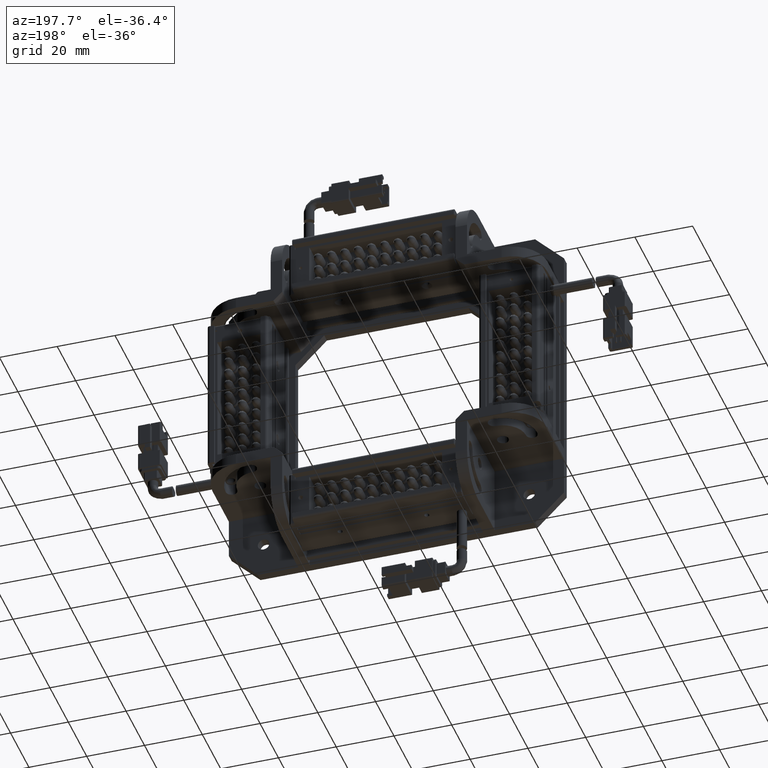
[diagram: clean part render]
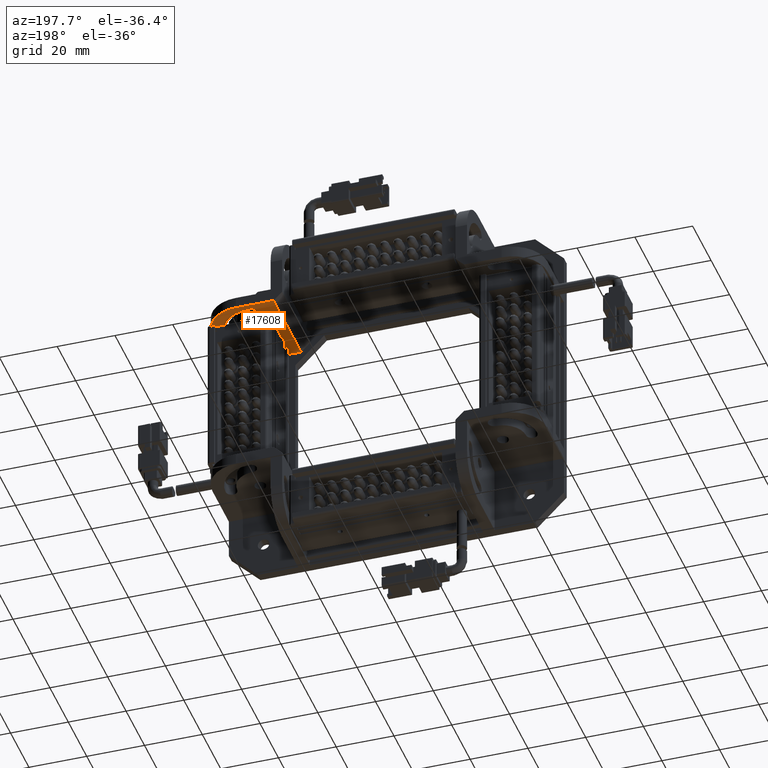
[diagram: same view with one face highlighted and labeled with its STEP entity id]
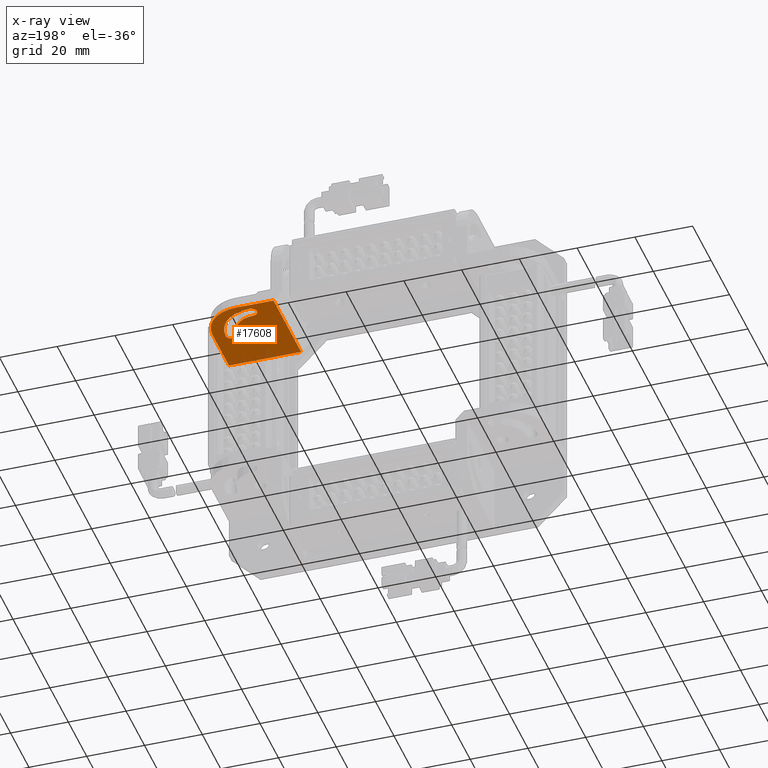
[diagram: x-ray of the same camera — body ghosted, the highlighted face saturated]
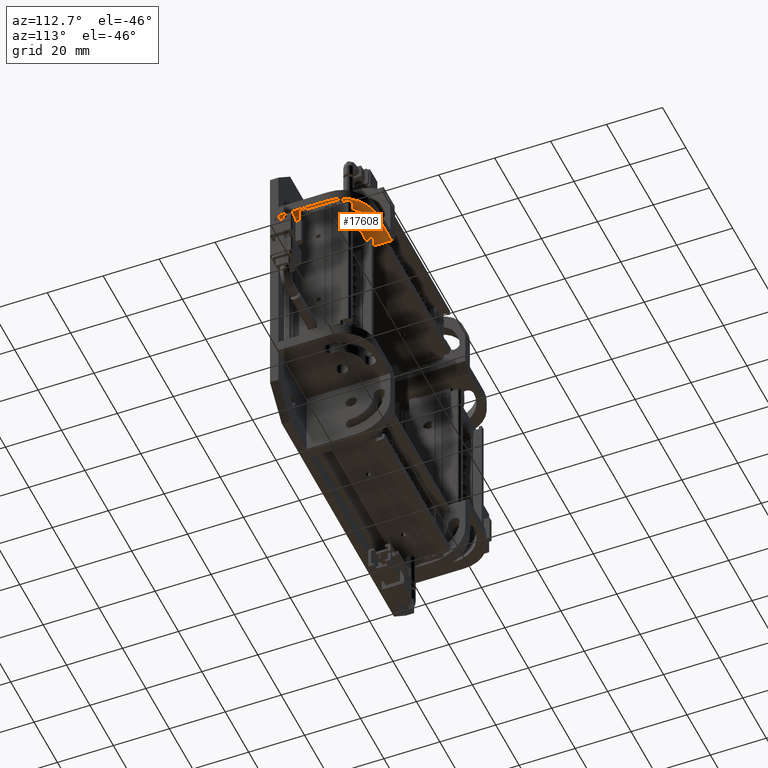
[diagram: same view with one face highlighted and labeled with its STEP entity id]
A machine part, auxiliary view. The second image highlights one B-rep face of the part: STEP entity #17608.
The next image is the same camera in x-ray: the body ghosted, the highlighted face saturated — about 6% of this face is hidden behind the body in this view.
A second angle (auxiliary view) of the same face is appended — the face is thin or edge-on in the first view.
In plain terms, the highlighted planar face has unit normal (0, 0, 1).
Its self-contained STEP definition (entity closure, byte-faithful):
#27 = EDGE_CURVE ( 'NONE', #4543, #74573, #59475, .T. ) ;
#97 = EDGE_CURVE ( 'NONE', #74573, #4543, #18062, .T. ) ;
#258 = ORIENTED_EDGE ( 'NONE', *, *, #27, .F. ) ;
#526 = VERTEX_POINT ( 'NONE', #18904 ) ;
#2100 = CARTESIAN_POINT ( 'NONE',  ( 42.00000000000024200, 15.99999999999998200, 29.99999999999967300 ) ) ;
#2408 = AXIS2_PLACEMENT_3D ( 'NONE', #63218, #22583, #70036 ) ;
#2801 = PLANE ( 'NONE',  #6748 ) ;
#3970 = AXIS2_PLACEMENT_3D ( 'NONE', #63843, #23184, #70624 ) ;
#4543 = VERTEX_POINT ( 'NONE', #15065 ) ;
#4652 = FACE_BOUND ( 'NONE', #19392, .T. ) ;
#6748 = AXIS2_PLACEMENT_3D ( 'NONE', #71007, #30426, #77811 ) ;
#7460 = ORIENTED_EDGE ( 'NONE', *, *, #43928, .F. ) ;
#8925 = DIRECTION ( 'NONE',  ( 0.0000000000000000000, 1.000000000000000000, 0.0000000000000000000 ) ) ;
#9115 = DIRECTION ( 'NONE',  ( -1.000000000000000000, 1.010611832113635500E-016, 4.994198925862109000E-015 ) ) ;
#9490 = DIRECTION ( 'NONE',  ( 4.994198925862109000E-015, 3.275591000619051700E-030, 1.000000000000000000 ) ) ;
#11017 = ORIENTED_EDGE ( 'NONE', *, *, #11218, .F. ) ;
#11218 = EDGE_CURVE ( 'NONE', #75746, #526, #84136, .T. ) ;
#12670 = CARTESIAN_POINT ( 'NONE',  ( 58.00000000000026300, -2.171217816592565700E-014, 29.99999999999959100 ) ) ;
#12885 = VECTOR ( 'NONE', #78669, 1000.000000000000000 ) ;
#12937 = CARTESIAN_POINT ( 'NONE',  ( 33.00000000000024900, -1.918564858564156600E-014, 29.99999999999971900 ) ) ;
#14471 = ORIENTED_EDGE ( 'NONE', *, *, #97, .F. ) ;
#14476 = CARTESIAN_POINT ( 'NONE',  ( 50.00000000000024900, 15.99999999999997900, 29.99999999999963100 ) ) ;
#14723 = CARTESIAN_POINT ( 'NONE',  ( 42.00000000000024200, 23.99999999999999600, 29.99999999999967300 ) ) ;
#15065 = CARTESIAN_POINT ( 'NONE',  ( 42.00000000000024200, 17.99999999999999300, 29.99999999999967300 ) ) ;
#17608 = ADVANCED_FACE ( 'NONE', ( #74671, #4652, #40736 ), #2801, .F. ) ;
#18062 = CIRCLE ( 'NONE', #70055, 2.000000000000008900 ) ;
#18904 = CARTESIAN_POINT ( 'NONE',  ( 54.00000000000024900, 15.99999999999997700, 29.99999999999960900 ) ) ;
#19392 = EDGE_LOOP ( 'NONE', ( #11017, #40216, #7460, #45819 ) ) ;
#21083 = ORIENTED_EDGE ( 'NONE', *, *, #44324, .F. ) ;
#21730 = CARTESIAN_POINT ( 'NONE',  ( 58.00000000000026300, 17.99999999999998200, 29.99999999999958800 ) ) ;
#22583 = DIRECTION ( 'NONE',  ( 5.107333065599727100E-015, 3.264157530595568600E-030, 1.000000000000000000 ) ) ;
#22602 = EDGE_LOOP ( 'NONE', ( #21083, #64943, #48772, #43680, #33916 ) ) ;
#22824 = VERTEX_POINT ( 'NONE', #42988 ) ;
#23184 = DIRECTION ( 'NONE',  ( -4.994198925862109000E-015, -3.275591000619051700E-030, -1.000000000000000000 ) ) ;
#23247 = VECTOR ( 'NONE', #9115, 1000.000000000000000 ) ;
#23843 = VERTEX_POINT ( 'NONE', #14723 ) ;
#24116 = CARTESIAN_POINT ( 'NONE',  ( 46.00000000000026300, 29.99999999999998200, 29.99999999999965200 ) ) ;
#25050 = EDGE_LOOP ( 'NONE', ( #258, #14471 ) ) ;
#25425 = CARTESIAN_POINT ( 'NONE',  ( 30.00000000000023400, -1.888246503600747300E-014, 29.99999999999973000 ) ) ;
#29618 = DIRECTION ( 'NONE',  ( 1.010611832113635500E-016, 1.000000000000000000, -3.780310653259597200E-030 ) ) ;
#30426 = DIRECTION ( 'NONE',  ( 4.994198925862109000E-015, 3.275591000619051700E-030, 1.000000000000000000 ) ) ;
#32258 = DIRECTION ( 'NONE',  ( 1.000000000000000000, -1.010611832113635500E-016, -4.994198925862109000E-015 ) ) ;
#33032 = DIRECTION ( 'NONE',  ( 0.0000000000000000000, 1.000000000000000000, 0.0000000000000000000 ) ) ;
#33916 = ORIENTED_EDGE ( 'NONE', *, *, #83360, .F. ) ;
#34070 = CIRCLE ( 'NONE', #3970, 1.999999999999998200 ) ;
#34607 = VERTEX_POINT ( 'NONE', #21730 ) ;
#34832 = DIRECTION ( 'NONE',  ( -4.994198925862109000E-015, -3.275591000619051700E-030, -1.000000000000000000 ) ) ;
#35114 = CARTESIAN_POINT ( 'NONE',  ( 42.00000000000024200, 15.99999999999998200, 29.99999999999967300 ) ) ;
#35171 = DIRECTION ( 'NONE',  ( 0.0000000000000000000, 1.000000000000000000, 0.0000000000000000000 ) ) ;
#35573 = DIRECTION ( 'NONE',  ( -4.994198925862109000E-015, -3.275591000619051700E-030, -1.000000000000000000 ) ) ;
#36374 = VECTOR ( 'NONE', #32258, 1000.000000000000000 ) ;
#38215 = CARTESIAN_POINT ( 'NONE',  ( 42.00000000000024900, 13.99999999999997500, 29.99999999999967300 ) ) ;
#40082 = AXIS2_PLACEMENT_3D ( 'NONE', #50194, #9490, #56989 ) ;
#40216 = ORIENTED_EDGE ( 'NONE', *, *, #55684, .F. ) ;
#40736 = FACE_BOUND ( 'NONE', #25050, .T. ) ;
#41072 = CIRCLE ( 'NONE', #68324, 2.000000000000001800 ) ;
#41974 = CARTESIAN_POINT ( 'NONE',  ( 42.00000000000024200, 15.99999999999998200, 29.99999999999967300 ) ) ;
#42556 = DIRECTION ( 'NONE',  ( -4.994198925862109000E-015, -3.275591000619051700E-030, -1.000000000000000000 ) ) ;
#42938 = CARTESIAN_POINT ( 'NONE',  ( 30.00000000000023800, 29.99999999999998200, 29.99999999999973000 ) ) ;
#42988 = CARTESIAN_POINT ( 'NONE',  ( 33.00000000000024900, 29.99999999999998200, 29.99999999999971900 ) ) ;
#43680 = ORIENTED_EDGE ( 'NONE', *, *, #51040, .F. ) ;
#43928 = EDGE_CURVE ( 'NONE', #87390, #23843, #48067, .T. ) ;
#44324 = EDGE_CURVE ( 'NONE', #22824, #82279, #67028, .T. ) ;
#44596 = CARTESIAN_POINT ( 'NONE',  ( 33.00000000000024900, 29.99999999999998200, 29.99999999999971900 ) ) ;
#45819 = ORIENTED_EDGE ( 'NONE', *, *, #68188, .F. ) ;
#47106 = VERTEX_POINT ( 'NONE', #24116 ) ;
#47594 = LINE ( 'NONE', #76713, #65619 ) ;
#48067 = CIRCLE ( 'NONE', #40082, 8.000000000000010700 ) ;
#48772 = ORIENTED_EDGE ( 'NONE', *, *, #79797, .F. ) ;
#49617 = DIRECTION ( 'NONE',  ( -4.994198925862109000E-015, -3.275591000619051700E-030, -1.000000000000000000 ) ) ;
#50148 = AXIS2_PLACEMENT_3D ( 'NONE', #2100, #49617, #8925 ) ;
#50194 = CARTESIAN_POINT ( 'NONE',  ( 42.00000000000024200, 15.99999999999998200, 29.99999999999967300 ) ) ;
#51040 = EDGE_CURVE ( 'NONE', #68540, #34607, #47594, .T. ) ;
#53126 = CARTESIAN_POINT ( 'NONE',  ( 42.00000000000024200, 27.99999999999999300, 29.99999999999967300 ) ) ;
#54431 = LINE ( 'NONE', #25425, #36374 ) ;
#55684 = EDGE_CURVE ( 'NONE', #23843, #75746, #34070, .T. ) ;
#56989 = DIRECTION ( 'NONE',  ( 1.734723475976804700E-015, 1.000000000000000000, 0.0000000000000000000 ) ) ;
#59475 = CIRCLE ( 'NONE', #67200, 2.000000000000008900 ) ;
#63218 = CARTESIAN_POINT ( 'NONE',  ( 46.00000000000026300, 17.99999999999998600, 29.99999999999964800 ) ) ;
#63770 = CIRCLE ( 'NONE', #2408, 11.99999999999999600 ) ;
#63843 = CARTESIAN_POINT ( 'NONE',  ( 42.00000000000024200, 25.99999999999999600, 29.99999999999967300 ) ) ;
#64943 = ORIENTED_EDGE ( 'NONE', *, *, #72015, .F. ) ;
#65619 = VECTOR ( 'NONE', #29618, 1000.000000000000000 ) ;
#67028 = LINE ( 'NONE', #44596, #12885 ) ;
#67200 = AXIS2_PLACEMENT_3D ( 'NONE', #41974, #42556, #35171 ) ;
#68188 = EDGE_CURVE ( 'NONE', #526, #87390, #41072, .T. ) ;
#68324 = AXIS2_PLACEMENT_3D ( 'NONE', #76163, #35573, #82961 ) ;
#68540 = VERTEX_POINT ( 'NONE', #12670 ) ;
#70036 = DIRECTION ( 'NONE',  ( 1.000000000000000000, 0.0000000000000000000, -5.204170427930422900E-015 ) ) ;
#70055 = AXIS2_PLACEMENT_3D ( 'NONE', #35114, #34832, #33032 ) ;
#70624 = DIRECTION ( 'NONE',  ( 0.0000000000000000000, 1.000000000000000000, 0.0000000000000000000 ) ) ;
#71007 = CARTESIAN_POINT ( 'NONE',  ( 30.00000000000023800, 29.99999999999998200, 29.99999999999973000 ) ) ;
#72015 = EDGE_CURVE ( 'NONE', #47106, #22824, #77335, .T. ) ;
#74573 = VERTEX_POINT ( 'NONE', #38215 ) ;
#74671 = FACE_OUTER_BOUND ( 'NONE', #22602, .T. ) ;
#75746 = VERTEX_POINT ( 'NONE', #53126 ) ;
#76163 = CARTESIAN_POINT ( 'NONE',  ( 52.00000000000024900, 15.99999999999997900, 29.99999999999962000 ) ) ;
#76713 = CARTESIAN_POINT ( 'NONE',  ( 58.00000000000026300, 29.99999999999997900, 29.99999999999959100 ) ) ;
#77335 = LINE ( 'NONE', #42938, #23247 ) ;
#77811 = DIRECTION ( 'NONE',  ( -1.010611832113635500E-016, -1.000000000000000000, 3.780310653259597200E-030 ) ) ;
#78669 = DIRECTION ( 'NONE',  ( -1.010611832113635500E-016, -1.000000000000000000, 3.780310653259597200E-030 ) ) ;
#79797 = EDGE_CURVE ( 'NONE', #34607, #47106, #63770, .T. ) ;
#82279 = VERTEX_POINT ( 'NONE', #12937 ) ;
#82961 = DIRECTION ( 'NONE',  ( 0.0000000000000000000, 1.000000000000000000, 0.0000000000000000000 ) ) ;
#83360 = EDGE_CURVE ( 'NONE', #82279, #68540, #54431, .T. ) ;
#84136 = CIRCLE ( 'NONE', #50148, 12.00000000000001100 ) ;
#87390 = VERTEX_POINT ( 'NONE', #14476 ) ;